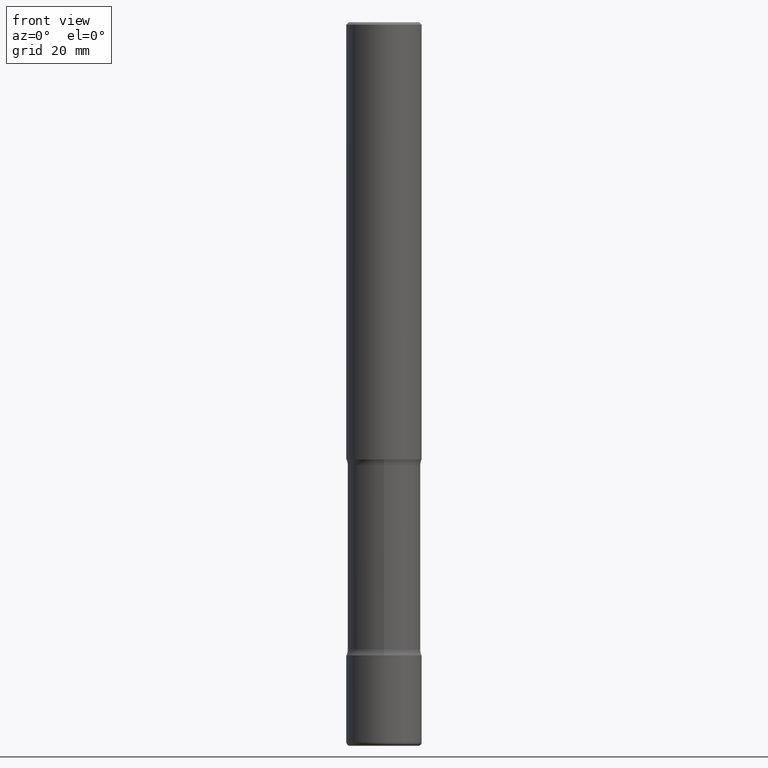
[diagram: clean part render]
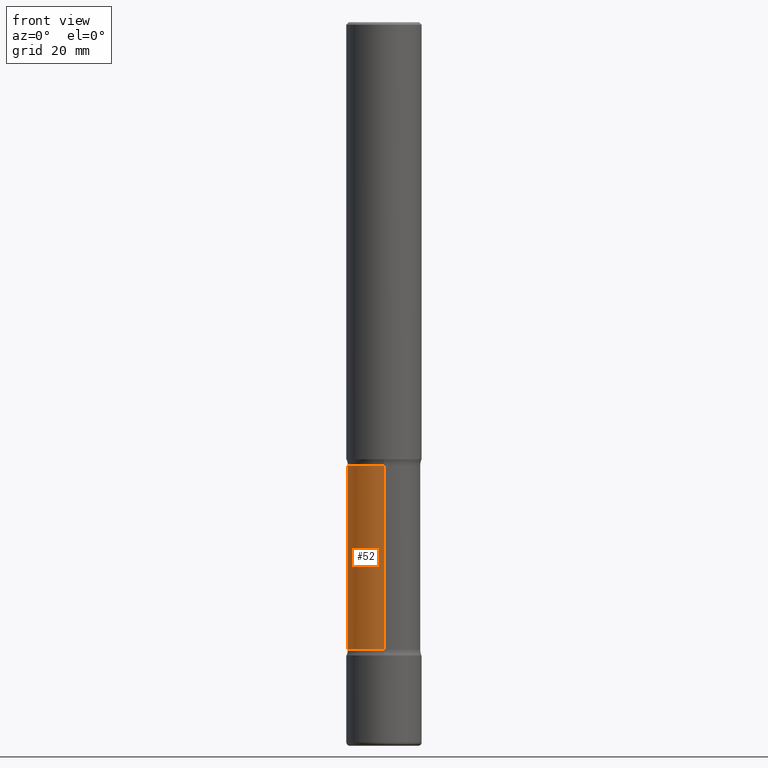
[diagram: same view with one face highlighted and labeled with its STEP entity id]
A machine part, front view. The second image highlights one B-rep face of the part: STEP entity #52.
In plain terms, the highlighted cylindrical surface (edge-blend (fillet) strip) has radius 7.6835 mm, axis along (0, -0, -1).
Its self-contained STEP definition (entity closure, byte-faithful):
#7 = LINE ( 'NONE', #439, #477 ) ;
#27 = CARTESIAN_POINT ( 'NONE',  ( 2.112346210000245327E-15, 0.3024999999999795075, -6.000000000000001776 ) ) ;
#38 = DIRECTION ( 'NONE',  ( 6.982962677686265133E-15, 1.000000000000000000, -3.612360983357701258E-15 ) ) ;
#46 = CARTESIAN_POINT ( 'NONE',  ( 2.112346210000222450E-15, 0.3024999999999818390, -5.201010205144337206 ) ) ;
#52 = ADVANCED_FACE ( 'NONE', ( #343 ), #421, .T. ) ;
#57 = EDGE_CURVE ( 'NONE', #357, #495, #286, .T. ) ;
#63 = ORIENTED_EDGE ( 'NONE', *, *, #65, .F. ) ;
#65 = EDGE_CURVE ( 'NONE', #530, #136, #375, .T. ) ;
#88 = ORIENTED_EDGE ( 'NONE', *, *, #491, .T. ) ;
#97 = DIRECTION ( 'NONE',  ( 2.668026719628616344E-29, -3.172765739582314775E-15, -1.000000000000000000 ) ) ;
#98 = CARTESIAN_POINT ( 'NONE',  ( 2.112346210000184979E-15, 0.3024999999999871125, -3.673989794855665458 ) ) ;
#115 = EDGE_CURVE ( 'NONE', #357, #530, #7, .T. ) ;
#121 = CARTESIAN_POINT ( 'NONE',  ( 1.270800515080793348E-28, -1.817484388621929912E-14, -5.201010205144336318 ) ) ;
#122 = ORIENTED_EDGE ( 'NONE', *, *, #57, .T. ) ;
#127 = CARTESIAN_POINT ( 'NONE',  ( -2.109603134314663709E-15, -0.3025000000000137579, -3.673989794855663238 ) ) ;
#136 = VERTEX_POINT ( 'NONE', #46 ) ;
#156 = AXIS2_PLACEMENT_3D ( 'NONE', #121, #436, #312 ) ;
#179 = DIRECTION ( 'NONE',  ( 2.668026719628616344E-29, -3.172765739582314775E-15, -1.000000000000000000 ) ) ;
#189 = AXIS2_PLACEMENT_3D ( 'NONE', #221, #293, #515 ) ;
#209 = ORIENTED_EDGE ( 'NONE', *, *, #115, .F. ) ;
#221 = CARTESIAN_POINT ( 'NONE',  ( 8.633873894739503570E-29, -1.332996584481247267E-14, -3.673989794855664570 ) ) ;
#247 = LINE ( 'NONE', #27, #252 ) ;
#252 = VECTOR ( 'NONE', #179, 39.37007874015748143 ) ;
#286 = CIRCLE ( 'NONE', #189, 0.3025000000000004352 ) ;
#293 = DIRECTION ( 'NONE',  ( 2.668026719628616344E-29, -3.172765739582314775E-15, -1.000000000000000000 ) ) ;
#304 = DIRECTION ( 'NONE',  ( 2.668026719628616344E-29, -3.172765739582314775E-15, -1.000000000000000000 ) ) ;
#312 = DIRECTION ( 'NONE',  ( 6.982962677686265922E-15, 1.000000000000000000, -3.612360983357703625E-15 ) ) ;
#327 = EDGE_LOOP ( 'NONE', ( #209, #122, #88, #63 ) ) ;
#343 = FACE_OUTER_BOUND ( 'NONE', #327, .T. ) ;
#357 = VERTEX_POINT ( 'NONE', #127 ) ;
#375 = CIRCLE ( 'NONE', #156, 0.3024999999999999911 ) ;
#421 = CYLINDRICAL_SURFACE ( 'NONE', #497, 0.3025000000000002132 ) ;
#425 = CARTESIAN_POINT ( 'NONE',  ( -2.109603134314618744E-15, -0.3025000000000181433, -5.201010205144335430 ) ) ;
#436 = DIRECTION ( 'NONE',  ( 2.668026719628616344E-29, -3.172765739582314775E-15, -1.000000000000000000 ) ) ;
#439 = CARTESIAN_POINT ( 'NONE',  ( -2.075300644325740765E-15, -0.3025000000000208633, -5.999999999999999112 ) ) ;
#477 = VECTOR ( 'NONE', #97, 39.37007874015748143 ) ;
#491 = EDGE_CURVE ( 'NONE', #495, #136, #247, .T. ) ;
#495 = VERTEX_POINT ( 'NONE', #98 ) ;
#497 = AXIS2_PLACEMENT_3D ( 'NONE', #552, #304, #38 ) ;
#515 = DIRECTION ( 'NONE',  ( 6.982962677686265922E-15, 1.000000000000000000, -3.612360983357698103E-15 ) ) ;
#530 = VERTEX_POINT ( 'NONE', #425 ) ;
#552 = CARTESIAN_POINT ( 'NONE',  ( 1.483973127219342911E-28, -2.070985133361325197E-14, -6.000000000000000888 ) ) ;